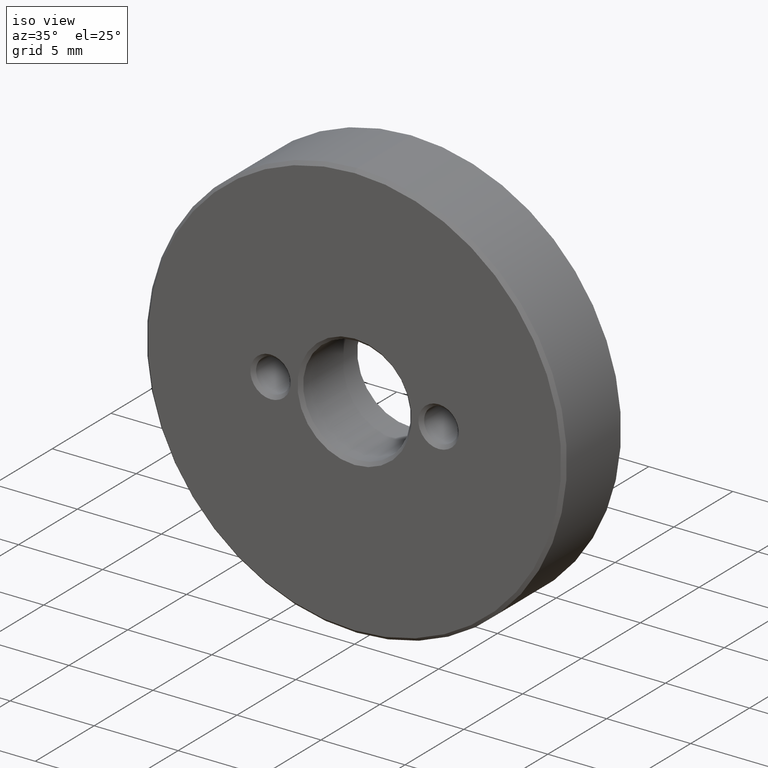
[diagram: clean part render]
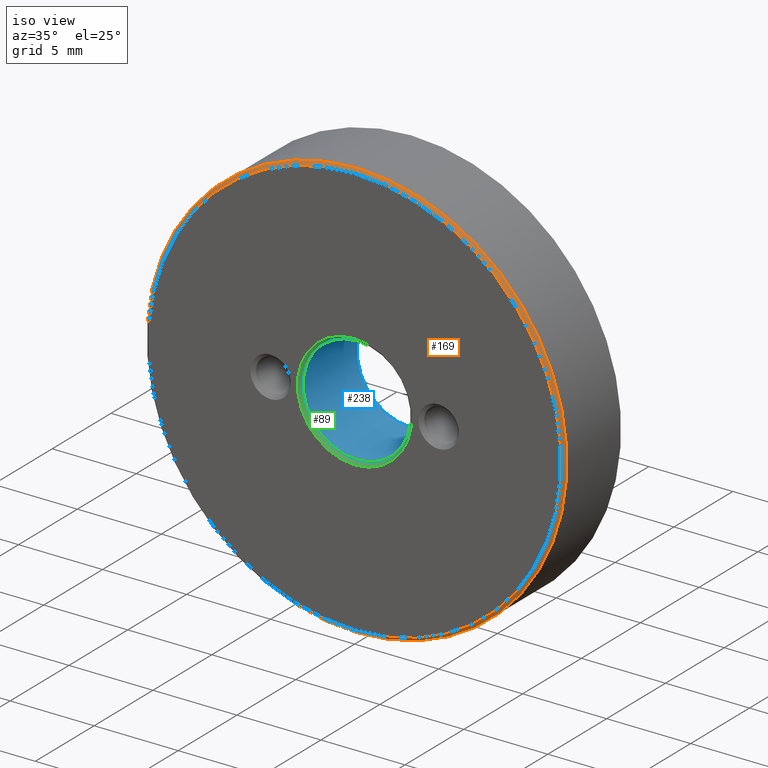
[diagram: same view with three faces highlighted in distinct colors, each labeled with its STEP entity id]
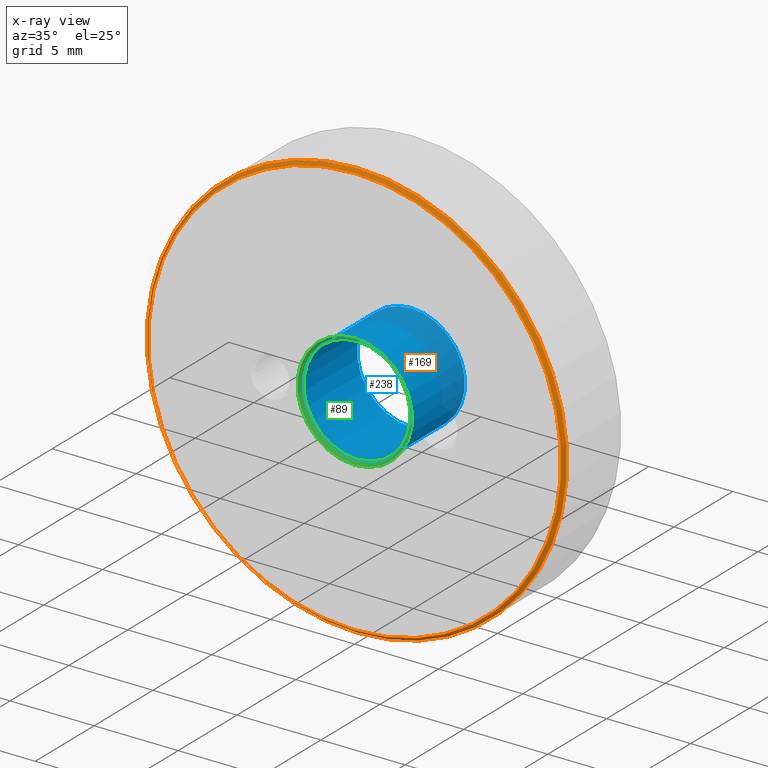
[diagram: x-ray of the same camera — body ghosted, the three highlighted faces saturated]
A machine part, iso view with three faces highlighted in distinct colors.
The next image is the same camera in x-ray (body ghosted, the three faces saturated) — at least one of them is partly hidden behind the body in this view.
Their STEP definitions:

[orange] entity #169 — the highlighted conical surface has half-angle 45 deg.
#3 = CIRCLE ( 'NONE', #174, 12.50000000000000000 ) ;
#44 = VERTEX_POINT ( 'NONE', #197 ) ;
#48 = DIRECTION ( 'NONE',  ( 0.000000000000000000, 0.000000000000000000, 1.000000000000000000 ) ) ;
#70 = CONICAL_SURFACE ( 'NONE', #396, 12.50000000000000000, 0.7853981633974526089 ) ;
#86 = FACE_BOUND ( 'NONE', #193, .T. ) ;
#161 = CIRCLE ( 'NONE', #374, 12.29999999999999893 ) ;
#169 = ADVANCED_FACE ( 'NONE', ( #86, #211 ), #70, .T. ) ;
#174 = AXIS2_PLACEMENT_3D ( 'NONE', #349, #296, #48 ) ;
#175 = ORIENTED_EDGE ( 'NONE', *, *, #391, .F. ) ;
#193 = EDGE_LOOP ( 'NONE', ( #175 ) ) ;
#197 = CARTESIAN_POINT ( 'NONE',  ( 0.000000000000000000, 0.000000000000000000, 12.29999999999999893 ) ) ;
#211 = FACE_OUTER_BOUND ( 'NONE', #379, .T. ) ;
#233 = DIRECTION ( 'NONE',  ( 0.000000000000000000, 0.000000000000000000, 1.000000000000000000 ) ) ;
#246 = DIRECTION ( 'NONE',  ( -0.000000000000000000, 1.000000000000000000, -0.000000000000000000 ) ) ;
#262 = CARTESIAN_POINT ( 'NONE',  ( 0.000000000000000000, 0.000000000000000000, 0.000000000000000000 ) ) ;
#265 = EDGE_CURVE ( 'NONE', #307, #307, #3, .T. ) ;
#280 = CARTESIAN_POINT ( 'NONE',  ( 0.000000000000000000, 0.2000000000000005107, 12.50000000000000000 ) ) ;
#296 = DIRECTION ( 'NONE',  ( -0.000000000000000000, 1.000000000000000000, -0.000000000000000000 ) ) ;
#302 = DIRECTION ( 'NONE',  ( -0.000000000000000000, -1.000000000000000000, -0.000000000000000000 ) ) ;
#307 = VERTEX_POINT ( 'NONE', #280 ) ;
#314 = ORIENTED_EDGE ( 'NONE', *, *, #265, .F. ) ;
#349 = CARTESIAN_POINT ( 'NONE',  ( 0.000000000000000000, 0.2000000000000005107, 0.000000000000000000 ) ) ;
#368 = DIRECTION ( 'NONE',  ( 0.000000000000000000, 0.000000000000000000, 1.000000000000000000 ) ) ;
#374 = AXIS2_PLACEMENT_3D ( 'NONE', #262, #302, #233 ) ;
#379 = EDGE_LOOP ( 'NONE', ( #314 ) ) ;
#391 = EDGE_CURVE ( 'NONE', #44, #44, #161, .T. ) ;
#396 = AXIS2_PLACEMENT_3D ( 'NONE', #397, #246, #368 ) ;
#397 = CARTESIAN_POINT ( 'NONE',  ( 0.000000000000000000, 0.2000000000000005107, 0.000000000000000000 ) ) ;

[blue] entity #238 — the highlighted cylindrical surface (bore or boss wall) has radius 3.2 mm, axis along (-0, -1, -0).
#9 = CYLINDRICAL_SURFACE ( 'NONE', #210, 3.200000000000000178 ) ;
#20 = VERTEX_POINT ( 'NONE', #359 ) ;
#27 = AXIS2_PLACEMENT_3D ( 'NONE', #112, #330, #272 ) ;
#33 = EDGE_CURVE ( 'NONE', #20, #20, #325, .T. ) ;
#37 = AXIS2_PLACEMENT_3D ( 'NONE', #199, #108, #56 ) ;
#42 = EDGE_LOOP ( 'NONE', ( #68 ) ) ;
#56 = DIRECTION ( 'NONE',  ( 0.000000000000000000, 0.000000000000000000, 1.000000000000000000 ) ) ;
#60 = CIRCLE ( 'NONE', #27, 3.200000000000000178 ) ;
#65 = CARTESIAN_POINT ( 'NONE',  ( 0.000000000000000000, 0.2000000000000031197, 3.200000000000000178 ) ) ;
#68 = ORIENTED_EDGE ( 'NONE', *, *, #290, .T. ) ;
#94 = VERTEX_POINT ( 'NONE', #65 ) ;
#108 = DIRECTION ( 'NONE',  ( 0.000000000000000000, 1.000000000000000000, 0.000000000000000000 ) ) ;
#112 = CARTESIAN_POINT ( 'NONE',  ( 0.000000000000000000, 0.2000000000000031197, 0.000000000000000000 ) ) ;
#199 = CARTESIAN_POINT ( 'NONE',  ( 0.000000000000000000, 4.799999999999997158, 0.000000000000000000 ) ) ;
#210 = AXIS2_PLACEMENT_3D ( 'NONE', #351, #384, #354 ) ;
#230 = FACE_OUTER_BOUND ( 'NONE', #323, .T. ) ;
#238 = ADVANCED_FACE ( 'NONE', ( #322, #230 ), #9, .F. ) ;
#272 = DIRECTION ( 'NONE',  ( 0.000000000000000000, 0.000000000000000000, 1.000000000000000000 ) ) ;
#290 = EDGE_CURVE ( 'NONE', #94, #94, #60, .T. ) ;
#322 = FACE_OUTER_BOUND ( 'NONE', #42, .T. ) ;
#323 = EDGE_LOOP ( 'NONE', ( #344 ) ) ;
#325 = CIRCLE ( 'NONE', #37, 3.200000000000000178 ) ;
#330 = DIRECTION ( 'NONE',  ( -0.000000000000000000, -1.000000000000000000, -0.000000000000000000 ) ) ;
#344 = ORIENTED_EDGE ( 'NONE', *, *, #33, .T. ) ;
#351 = CARTESIAN_POINT ( 'NONE',  ( 0.000000000000000000, 5.000000000000000000, 0.000000000000000000 ) ) ;
#354 = DIRECTION ( 'NONE',  ( 0.000000000000000000, 0.000000000000000000, -1.000000000000000000 ) ) ;
#359 = CARTESIAN_POINT ( 'NONE',  ( 0.000000000000000000, 4.799999999999997158, 3.200000000000000178 ) ) ;
#384 = DIRECTION ( 'NONE',  ( -0.000000000000000000, -1.000000000000000000, -0.000000000000000000 ) ) ;

[green] entity #89 — the highlighted conical surface has half-angle 45 deg.
#16 = ORIENTED_EDGE ( 'NONE', *, *, #378, .F. ) ;
#23 = DIRECTION ( 'NONE',  ( -0.000000000000000000, -1.000000000000000000, -0.000000000000000000 ) ) ;
#27 = AXIS2_PLACEMENT_3D ( 'NONE', #112, #330, #272 ) ;
#30 = FACE_BOUND ( 'NONE', #255, .T. ) ;
#49 = EDGE_LOOP ( 'NONE', ( #16 ) ) ;
#50 = CIRCLE ( 'NONE', #324, 3.400000000000000355 ) ;
#60 = CIRCLE ( 'NONE', #27, 3.200000000000000178 ) ;
#65 = CARTESIAN_POINT ( 'NONE',  ( 0.000000000000000000, 0.2000000000000031197, 3.200000000000000178 ) ) ;
#89 = ADVANCED_FACE ( 'NONE', ( #30, #281 ), #138, .F. ) ;
#94 = VERTEX_POINT ( 'NONE', #65 ) ;
#112 = CARTESIAN_POINT ( 'NONE',  ( 0.000000000000000000, 0.2000000000000031197, 0.000000000000000000 ) ) ;
#124 = DIRECTION ( 'NONE',  ( 0.000000000000000000, 0.000000000000000000, -1.000000000000000000 ) ) ;
#138 = CONICAL_SURFACE ( 'NONE', #289, 3.400000000000000355, 0.7853981633974407295 ) ;
#145 = DIRECTION ( 'NONE',  ( 0.000000000000000000, 1.000000000000000000, 0.000000000000000000 ) ) ;
#149 = CARTESIAN_POINT ( 'NONE',  ( 0.000000000000000000, 0.000000000000000000, 3.400000000000000355 ) ) ;
#156 = VERTEX_POINT ( 'NONE', #149 ) ;
#178 = CARTESIAN_POINT ( 'NONE',  ( 0.000000000000000000, 0.000000000000000000, 0.000000000000000000 ) ) ;
#183 = CARTESIAN_POINT ( 'NONE',  ( 0.000000000000000000, 0.000000000000000000, 0.000000000000000000 ) ) ;
#250 = ORIENTED_EDGE ( 'NONE', *, *, #290, .F. ) ;
#255 = EDGE_LOOP ( 'NONE', ( #250 ) ) ;
#272 = DIRECTION ( 'NONE',  ( 0.000000000000000000, 0.000000000000000000, 1.000000000000000000 ) ) ;
#281 = FACE_OUTER_BOUND ( 'NONE', #49, .T. ) ;
#289 = AXIS2_PLACEMENT_3D ( 'NONE', #183, #23, #124 ) ;
#290 = EDGE_CURVE ( 'NONE', #94, #94, #60, .T. ) ;
#324 = AXIS2_PLACEMENT_3D ( 'NONE', #178, #145, #389 ) ;
#330 = DIRECTION ( 'NONE',  ( -0.000000000000000000, -1.000000000000000000, -0.000000000000000000 ) ) ;
#378 = EDGE_CURVE ( 'NONE', #156, #156, #50, .T. ) ;
#389 = DIRECTION ( 'NONE',  ( 0.000000000000000000, 0.000000000000000000, 1.000000000000000000 ) ) ;